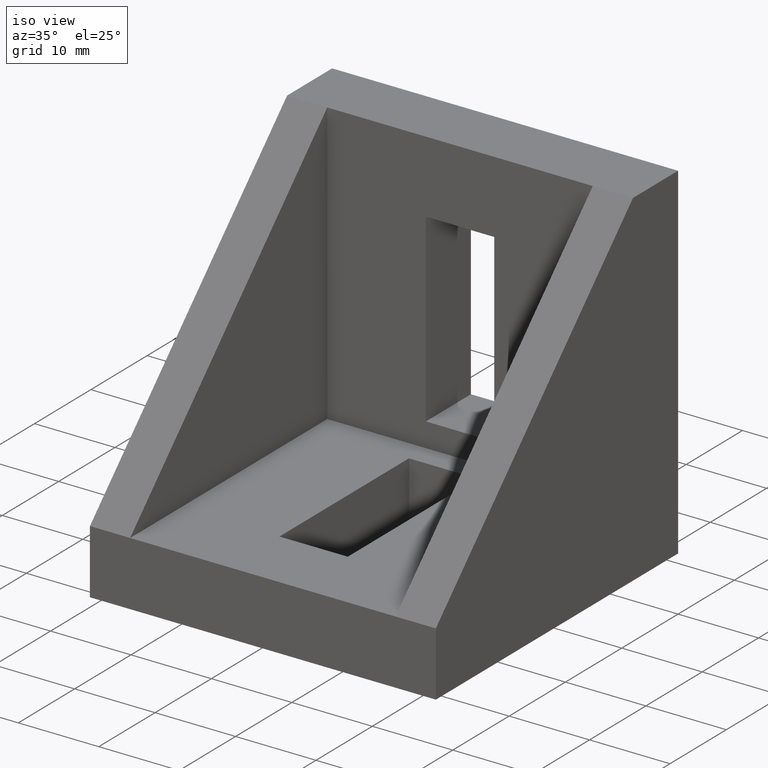
[diagram: clean part render]
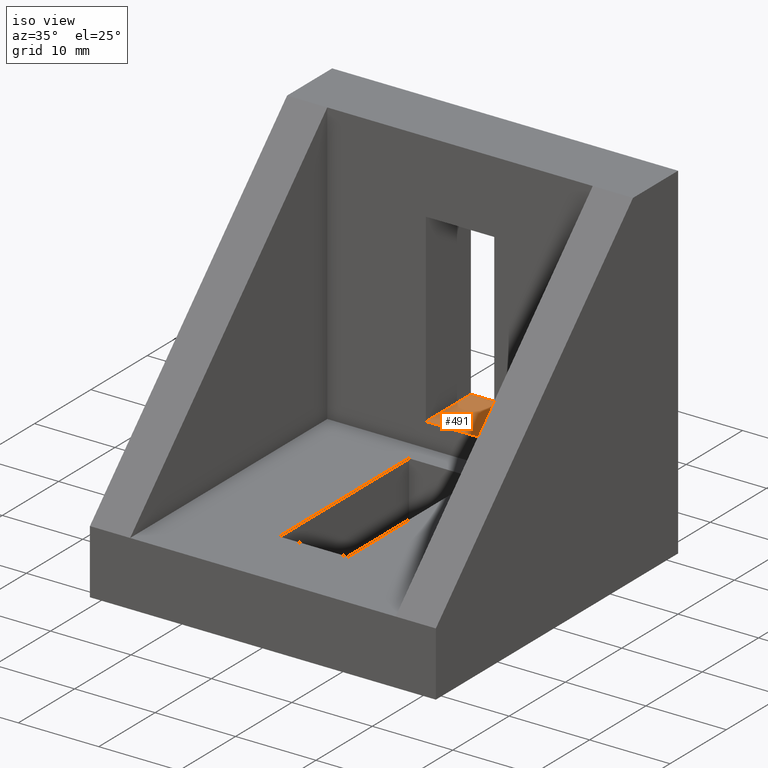
[diagram: same view with one face highlighted and labeled with its STEP entity id]
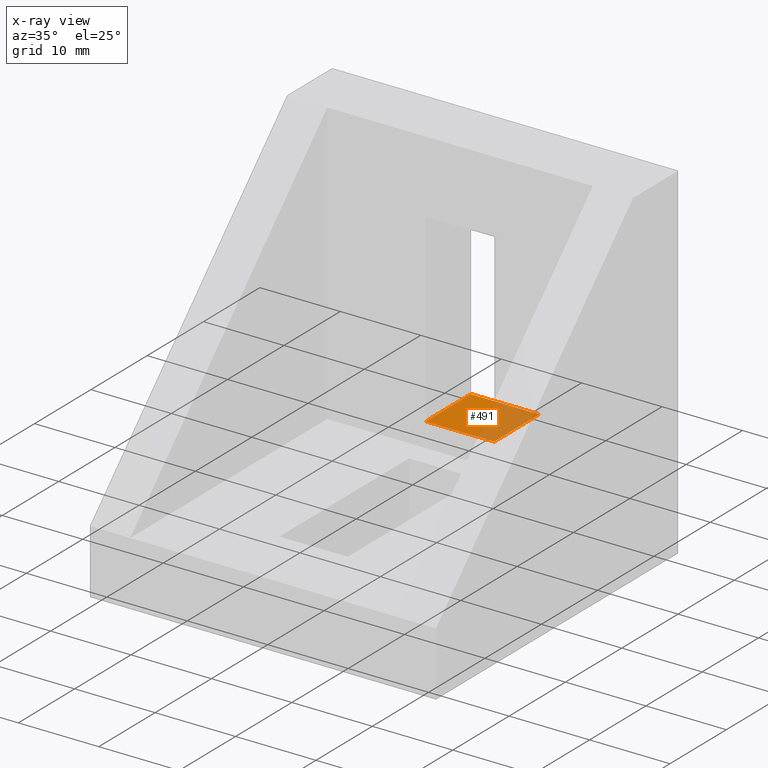
[diagram: x-ray of the same camera — body ghosted, the highlighted face saturated]
A machine part, iso view. The second image highlights one B-rep face of the part: STEP entity #491.
The next image is the same camera in x-ray: the body ghosted, the highlighted face saturated — about 45% of this face is hidden behind the body in this view.
In plain terms, the highlighted planar face has unit normal (-0, -0, -1).
Its self-contained STEP definition (entity closure, byte-faithful):
#254=CARTESIAN_POINT('',(17.249999910790972,1.131664E-013,10.999998999835292));
#255=VERTEX_POINT('',#254);
#262=CARTESIAN_POINT('',(25.749999910756920,1.142073E-013,10.999998780453952));
#263=VERTEX_POINT('',#262);
#264=CARTESIAN_POINT('',(17.249999910790972,1.131664E-013,10.999998999835292));
#265=DIRECTION('',(1.000000000000000,1.224647E-016,-0.000000025809569));
#266=VECTOR('',#265,8.499999999965951);
#267=LINE('',#264,#266);
#268=EDGE_CURVE('',#255,#263,#267,.T.);
#337=CARTESIAN_POINT('',(25.749999910756920,-7.999999999967880,10.999998780453950));
#338=VERTEX_POINT('',#337);
#345=CARTESIAN_POINT('',(17.249999910790972,-7.999999999967882,10.999998999835292));
#346=VERTEX_POINT('',#345);
#347=CARTESIAN_POINT('',(17.249999910790972,-7.999999999967882,10.999998999835292));
#348=DIRECTION('',(1.000000000000000,1.044916E-016,-0.000000025809570));
#349=VECTOR('',#348,8.499999999965951);
#350=LINE('',#347,#349);
#351=EDGE_CURVE('',#346,#338,#350,.T.);
#470=CARTESIAN_POINT('',(17.249999910790972,-7.999999999967882,10.999998999835292));
#471=DIRECTION('',(-0.000000025809570,-3.160761E-024,-1.000000000000000));
#472=DIRECTION('',(0.0,1.0,0.0));
#473=AXIS2_PLACEMENT_3D('',#470,#471,#472);
#474=PLANE('',#473);
#475=CARTESIAN_POINT('',(25.749999910756920,-7.999999999967880,10.999998780453950));
#476=DIRECTION('',(0.0,1.0,0.0));
#477=VECTOR('',#476,7.999999999967995);
#478=LINE('',#475,#477);
#479=EDGE_CURVE('',#338,#263,#478,.T.);
#480=ORIENTED_EDGE('',*,*,#479,.T.);
#481=ORIENTED_EDGE('',*,*,#268,.F.);
#482=CARTESIAN_POINT('',(17.249999910790972,-7.999999999967882,10.999998999835292));
#483=DIRECTION('',(0.0,1.0,0.0));
#484=VECTOR('',#483,7.999999999967995);
#485=LINE('',#482,#484);
#486=EDGE_CURVE('',#346,#255,#485,.T.);
#487=ORIENTED_EDGE('',*,*,#486,.F.);
#488=ORIENTED_EDGE('',*,*,#351,.T.);
#489=EDGE_LOOP('',(#480,#481,#487,#488));
#490=FACE_OUTER_BOUND('',#489,.T.);
#491=ADVANCED_FACE('',(#490),#474,.F.);